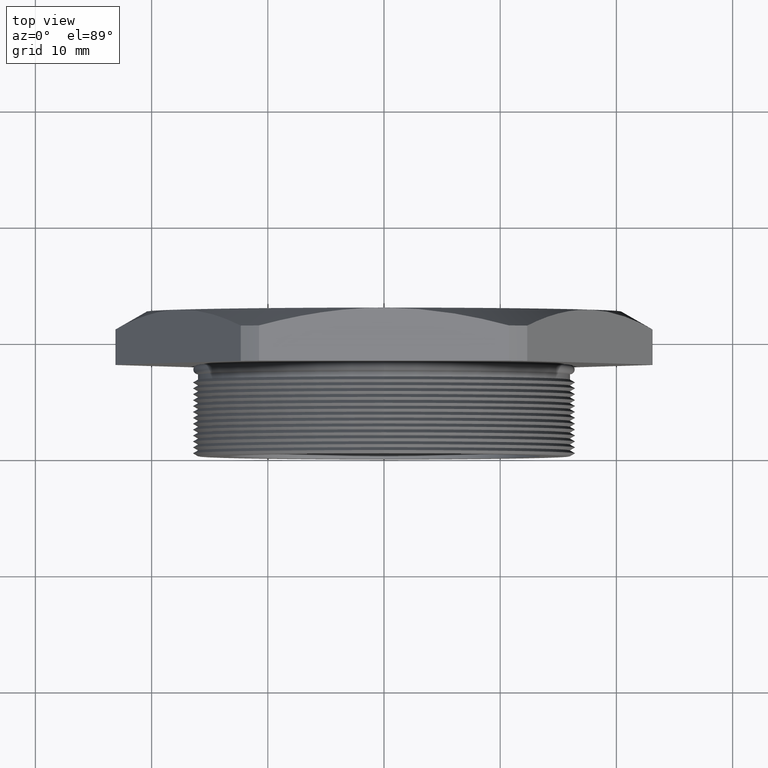
[diagram: clean part render]
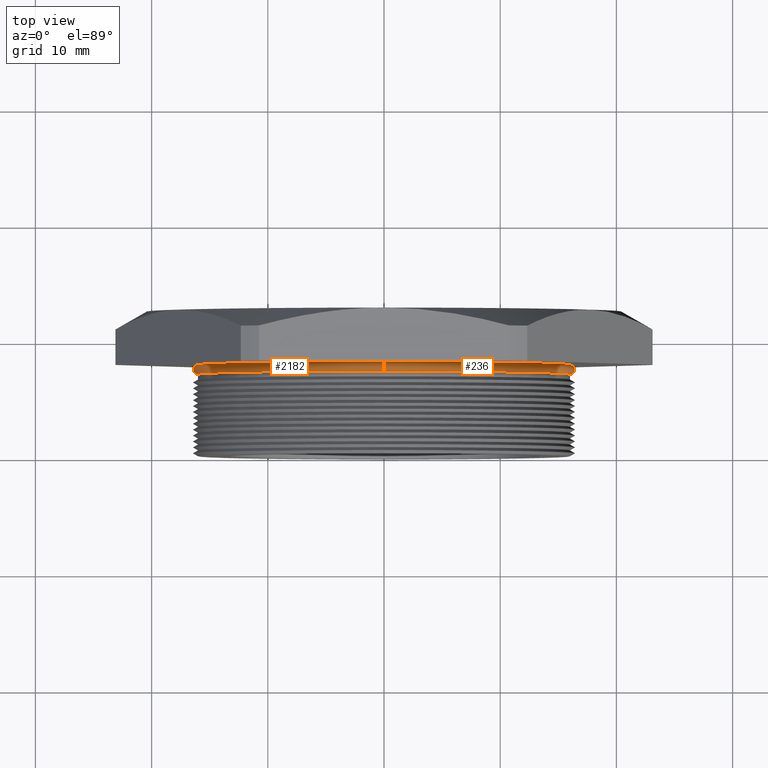
[diagram: same view with one multi-face feature highlighted, each face labeled with its STEP entity id]
A machine part, top view. The highlighted faces form ONE feature: a constant-radius fillet chain: 2 tangent blend faces with common blend radius 0.4089 mm. The faces share edges in the B-rep.
Their STEP definitions:
[1] entity #2182 (Torus):
#29 = EDGE_CURVE ( 'NONE', #245, #242, #676, .T. ) ;
#47 = EDGE_CURVE ( 'NONE', #237, #234, #711, .T. ) ;
#165 = EDGE_CURVE ( 'NONE', #234, #245, #900, .T. ) ;
#234 = VERTEX_POINT ( 'NONE', #1016 ) ;
#237 = VERTEX_POINT ( 'NONE', #1013 ) ;
#241 = EDGE_CURVE ( 'NONE', #237, #242, #1003, .T. ) ;
#242 = VERTEX_POINT ( 'NONE', #998 ) ;
#245 = VERTEX_POINT ( 'NONE', #1056 ) ;
#672 = DIRECTION ( 'NONE',  ( 0.0000000000000000000, 0.0000000000000000000, 1.000000000000000000 ) ) ;
#673 = DIRECTION ( 'NONE',  ( 0.0000000000000000000, 1.000000000000000000, 0.0000000000000000000 ) ) ;
#674 = CARTESIAN_POINT ( 'NONE',  ( 0.0000000000000000000, 0.2778020518525162700, 0.0000000000000000000 ) ) ;
#675 = AXIS2_PLACEMENT_3D ( 'NONE', #674, #673, #672 ) ;
#676 = CIRCLE ( 'NONE', #675, 0.6300000000000000000 ) ;
#707 = DIRECTION ( 'NONE',  ( 0.0000000000000000000, 0.0000000000000000000, -1.000000000000000000 ) ) ;
#708 = DIRECTION ( 'NONE',  ( 0.0000000000000000000, -1.000000000000000000, 0.0000000000000000000 ) ) ;
#709 = CARTESIAN_POINT ( 'NONE',  ( 0.0000000000000000000, 0.3100000000000000000, 0.0000000000000000000 ) ) ;
#710 = AXIS2_PLACEMENT_3D ( 'NONE', #709, #708, #707 ) ;
#711 = CIRCLE ( 'NONE', #710, 0.6300000000000000000 ) ;
#892 = DIRECTION ( 'NONE',  ( 0.0000000000000000000, 0.0000000000000000000, 1.000000000000000000 ) ) ;
#893 = DIRECTION ( 'NONE',  ( -1.000000000000000000, 0.0000000000000000000, 0.0000000000000000000 ) ) ;
#894 = CARTESIAN_POINT ( 'NONE',  ( 0.0000000000000000000, 0.2939010259262581100, -0.6300000000000000000 ) ) ;
#895 = AXIS2_PLACEMENT_3D ( 'NONE', #894, #893, #892 ) ;
#900 = CIRCLE ( 'NONE', #895, 0.01609897407374182000 ) ;
#998 = CARTESIAN_POINT ( 'NONE',  ( 7.715274834628325400E-017, 0.2778020518525162700, 0.6300000000000000000 ) ) ;
#999 = DIRECTION ( 'NONE',  ( -1.224646799147351000E-016, 0.0000000000000000000, -1.000000000000000000 ) ) ;
#1000 = DIRECTION ( 'NONE',  ( 1.000000000000000000, 0.0000000000000000000, -1.224646799147353200E-016 ) ) ;
#1001 = CARTESIAN_POINT ( 'NONE',  ( 7.715274834628325400E-017, 0.2939010259262581100, 0.6300000000000000000 ) ) ;
#1002 = AXIS2_PLACEMENT_3D ( 'NONE', #1001, #1000, #999 ) ;
#1003 = CIRCLE ( 'NONE', #1002, 0.01609897407374182000 ) ;
#1013 = CARTESIAN_POINT ( 'NONE',  ( 7.715274834628325400E-017, 0.3100000000000000000, 0.6300000000000000000 ) ) ;
#1016 = CARTESIAN_POINT ( 'NONE',  ( 0.0000000000000000000, 0.3100000000000000000, -0.6300000000000000000 ) ) ;
#1056 = CARTESIAN_POINT ( 'NONE',  ( 0.0000000000000000000, 0.2778020518525162700, -0.6300000000000000000 ) ) ;
#1936 = DIRECTION ( 'NONE',  ( 0.0000000000000000000, 0.0000000000000000000, -1.000000000000000000 ) ) ;
#1937 = DIRECTION ( 'NONE',  ( 0.0000000000000000000, -1.000000000000000000, 0.0000000000000000000 ) ) ;
#1938 = AXIS2_PLACEMENT_3D ( 'NONE', #1945, #1937, #1936 ) ;
#1939 = TOROIDAL_SURFACE ( 'NONE', #1938, 0.6300000000000000000, 0.01609897407374179600 ) ;
#1940 = FACE_OUTER_BOUND ( 'NONE', #2180, .T. ) ;
#1945 = CARTESIAN_POINT ( 'NONE',  ( 0.0000000000000000000, 0.2939010259262581100, 0.0000000000000000000 ) ) ;
#2177 = ORIENTED_EDGE ( 'NONE', *, *, #165, .T. ) ;
#2178 = ORIENTED_EDGE ( 'NONE', *, *, #29, .T. ) ;
#2179 = ORIENTED_EDGE ( 'NONE', *, *, #47, .T. ) ;
#2180 = EDGE_LOOP ( 'NONE', ( #2181, #2179, #2177, #2178 ) ) ;
#2181 = ORIENTED_EDGE ( 'NONE', *, *, #241, .F. ) ;
#2182 = ADVANCED_FACE ( 'NONE', ( #1940 ), #1939, .T. ) ;
[2] entity #236 (Torus):
#164 = ORIENTED_EDGE ( 'NONE', *, *, #165, .F. ) ;
#165 = EDGE_CURVE ( 'NONE', #234, #245, #900, .T. ) ;
#234 = VERTEX_POINT ( 'NONE', #1016 ) ;
#235 = EDGE_LOOP ( 'NONE', ( #238, #240, #243, #164 ) ) ;
#236 = ADVANCED_FACE ( 'NONE', ( #1015 ), #1012, .T. ) ;
#237 = VERTEX_POINT ( 'NONE', #1013 ) ;
#238 = ORIENTED_EDGE ( 'NONE', *, *, #239, .T. ) ;
#239 = EDGE_CURVE ( 'NONE', #234, #237, #1008, .T. ) ;
#240 = ORIENTED_EDGE ( 'NONE', *, *, #241, .T. ) ;
#241 = EDGE_CURVE ( 'NONE', #237, #242, #1003, .T. ) ;
#242 = VERTEX_POINT ( 'NONE', #998 ) ;
#243 = ORIENTED_EDGE ( 'NONE', *, *, #244, .T. ) ;
#244 = EDGE_CURVE ( 'NONE', #242, #245, #745, .T. ) ;
#245 = VERTEX_POINT ( 'NONE', #1056 ) ;
#745 = CIRCLE ( 'NONE', #1060, 0.6300000000000000000 ) ;
#892 = DIRECTION ( 'NONE',  ( 0.0000000000000000000, 0.0000000000000000000, 1.000000000000000000 ) ) ;
#893 = DIRECTION ( 'NONE',  ( -1.000000000000000000, 0.0000000000000000000, 0.0000000000000000000 ) ) ;
#894 = CARTESIAN_POINT ( 'NONE',  ( 0.0000000000000000000, 0.2939010259262581100, -0.6300000000000000000 ) ) ;
#895 = AXIS2_PLACEMENT_3D ( 'NONE', #894, #893, #892 ) ;
#900 = CIRCLE ( 'NONE', #895, 0.01609897407374182000 ) ;
#998 = CARTESIAN_POINT ( 'NONE',  ( 7.715274834628325400E-017, 0.2778020518525162700, 0.6300000000000000000 ) ) ;
#999 = DIRECTION ( 'NONE',  ( -1.224646799147351000E-016, 0.0000000000000000000, -1.000000000000000000 ) ) ;
#1000 = DIRECTION ( 'NONE',  ( 1.000000000000000000, 0.0000000000000000000, -1.224646799147353200E-016 ) ) ;
#1001 = CARTESIAN_POINT ( 'NONE',  ( 7.715274834628325400E-017, 0.2939010259262581100, 0.6300000000000000000 ) ) ;
#1002 = AXIS2_PLACEMENT_3D ( 'NONE', #1001, #1000, #999 ) ;
#1003 = CIRCLE ( 'NONE', #1002, 0.01609897407374182000 ) ;
#1004 = DIRECTION ( 'NONE',  ( 0.0000000000000000000, 0.0000000000000000000, -1.000000000000000000 ) ) ;
#1005 = DIRECTION ( 'NONE',  ( 0.0000000000000000000, -1.000000000000000000, 0.0000000000000000000 ) ) ;
#1006 = CARTESIAN_POINT ( 'NONE',  ( 0.0000000000000000000, 0.3100000000000000000, 0.0000000000000000000 ) ) ;
#1007 = AXIS2_PLACEMENT_3D ( 'NONE', #1006, #1005, #1004 ) ;
#1008 = CIRCLE ( 'NONE', #1007, 0.6300000000000000000 ) ;
#1009 = DIRECTION ( 'NONE',  ( 0.0000000000000000000, 0.0000000000000000000, -1.000000000000000000 ) ) ;
#1010 = DIRECTION ( 'NONE',  ( 0.0000000000000000000, -1.000000000000000000, 0.0000000000000000000 ) ) ;
#1011 = AXIS2_PLACEMENT_3D ( 'NONE', #1014, #1010, #1009 ) ;
#1012 = TOROIDAL_SURFACE ( 'NONE', #1011, 0.6300000000000000000, 0.01609897407374179600 ) ;
#1013 = CARTESIAN_POINT ( 'NONE',  ( 7.715274834628325400E-017, 0.3100000000000000000, 0.6300000000000000000 ) ) ;
#1014 = CARTESIAN_POINT ( 'NONE',  ( 0.0000000000000000000, 0.2939010259262581100, 0.0000000000000000000 ) ) ;
#1015 = FACE_OUTER_BOUND ( 'NONE', #235, .T. ) ;
#1016 = CARTESIAN_POINT ( 'NONE',  ( 0.0000000000000000000, 0.3100000000000000000, -0.6300000000000000000 ) ) ;
#1056 = CARTESIAN_POINT ( 'NONE',  ( 0.0000000000000000000, 0.2778020518525162700, -0.6300000000000000000 ) ) ;
#1057 = DIRECTION ( 'NONE',  ( 0.0000000000000000000, 0.0000000000000000000, 1.000000000000000000 ) ) ;
#1058 = DIRECTION ( 'NONE',  ( 0.0000000000000000000, 1.000000000000000000, 0.0000000000000000000 ) ) ;
#1059 = CARTESIAN_POINT ( 'NONE',  ( 0.0000000000000000000, 0.2778020518525162700, 0.0000000000000000000 ) ) ;
#1060 = AXIS2_PLACEMENT_3D ( 'NONE', #1059, #1058, #1057 ) ;